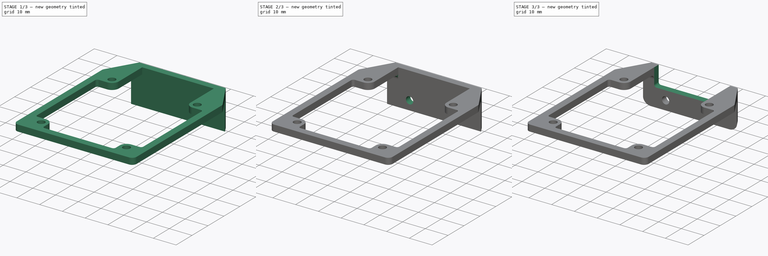
[diagram: build sequence overview — one tinted view per stage of 3, left to right]
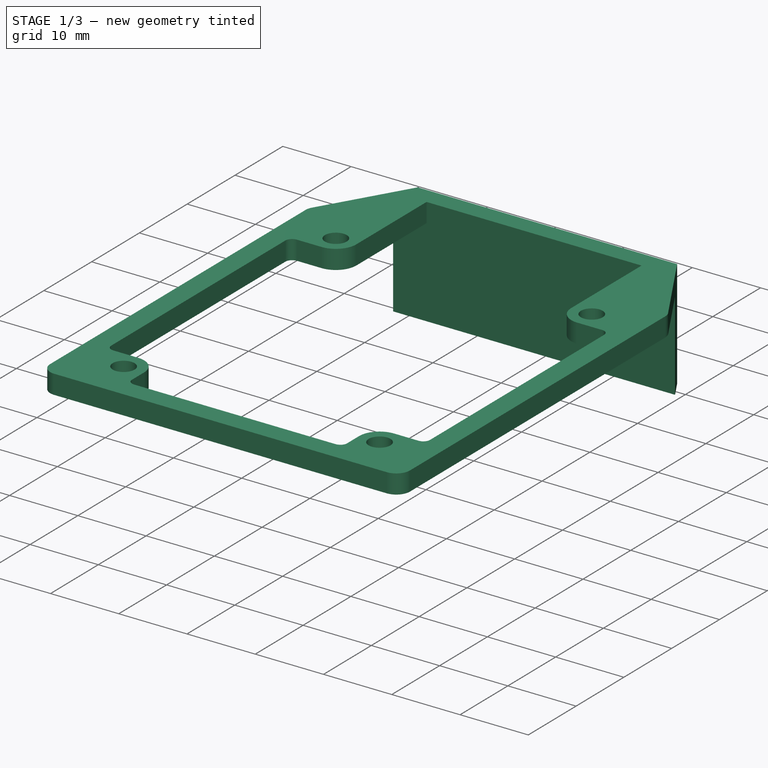
[diagram: stage 1 of 3 — iso view after this stage's code; geometry added in this stage tinted green]
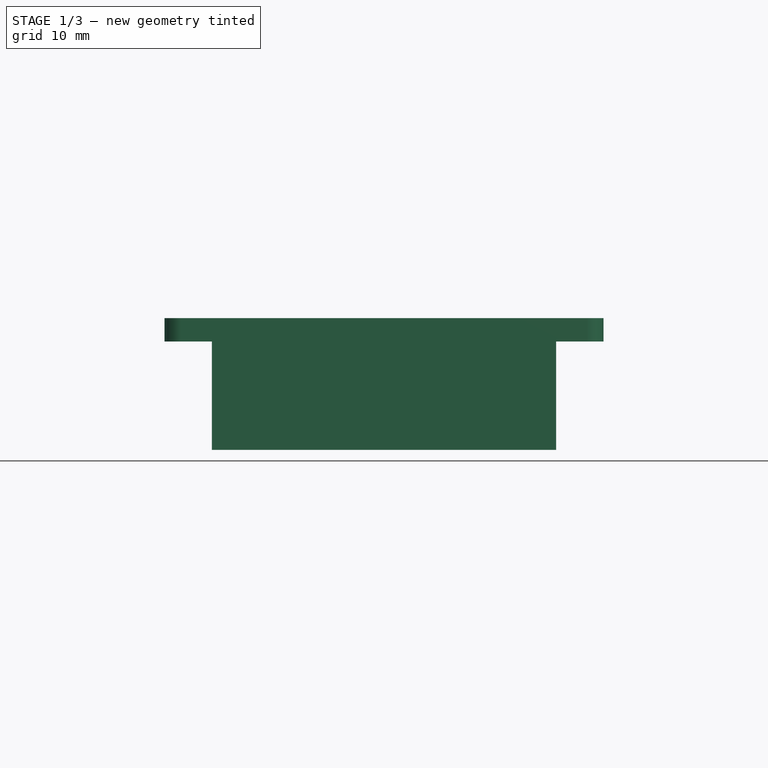
[diagram: stage 1 of 3 — front view after this stage's code; geometry added in this stage tinted green]
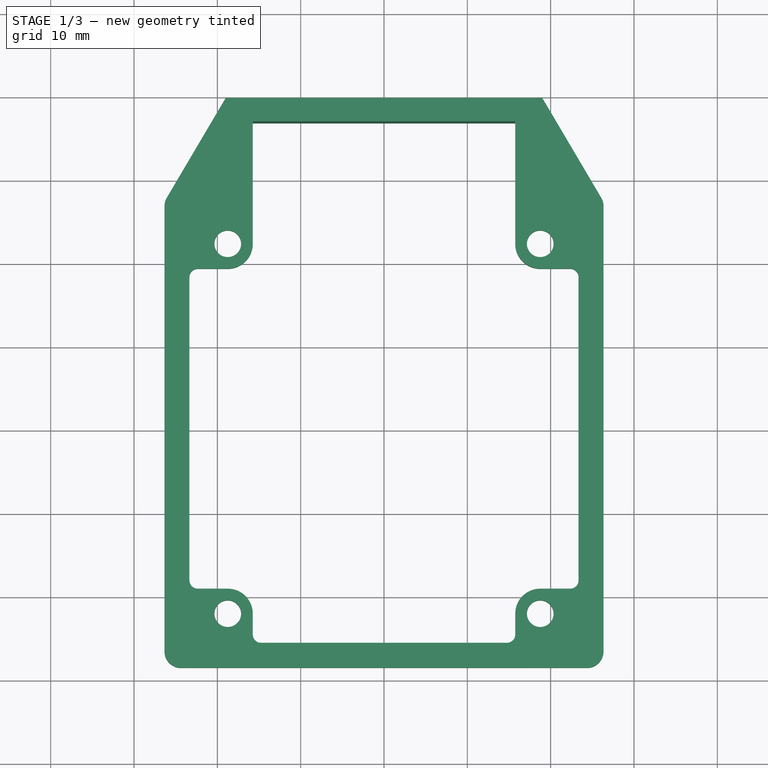
[diagram: stage 1 of 3 — top view after this stage's code; geometry added in this stage tinted green]
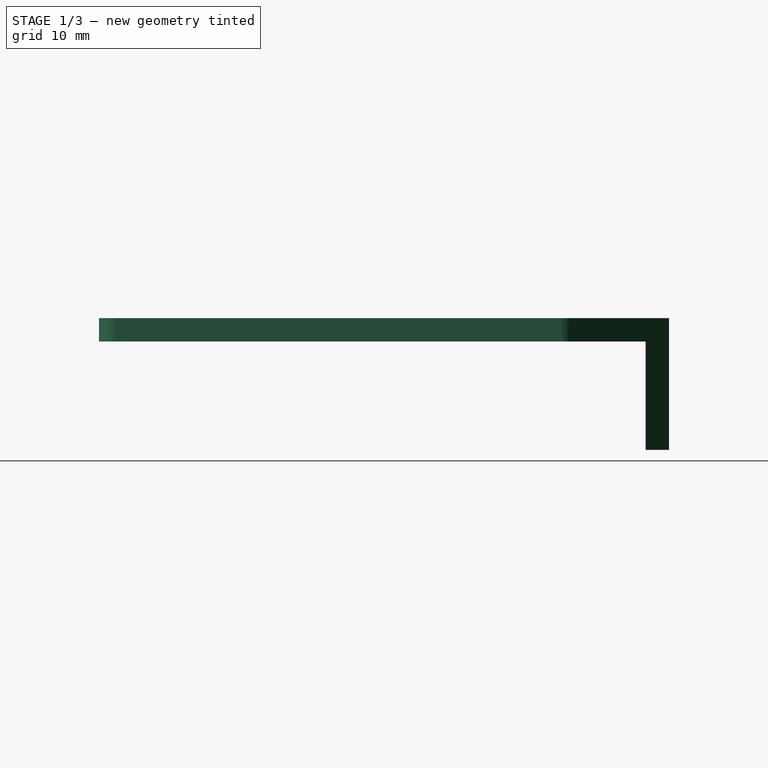
[diagram: stage 1 of 3 — right view after this stage's code; geometry added in this stage tinted green]
FCSTD DOCUMENT  (FreeCAD 0.21R33771 (Git))
Label: Powermodule_holder
License: All rights reserved
LicenseURL: http://en.wikipedia.org/wiki/All_rights_reserved
objects: Sketcher::SketchObject×4, PartDesign::Pad×2, PartDesign::Fillet×2, PartDesign::Hole×1, PartDesign::Pocket×1, PartDesign::Body×1
note: 17 computed .brp shape members not serialized (recipe doc carries the construction recipe); baked Part::Feature solids carry a one-line shape summary decoded from their .brp

FEATURE [Sketcher::SketchObject] Sketch
  FullyConstrained = true
  MapMode = 5
  Support = -> [XY_Plane]
  sketch-geometry (39):
    g0: LineSegment StartX=-15.75 StartY=36.9 StartZ=0 EndX=15.75 EndY=36.9 EndZ=0
    g1: LineSegment StartX=23.35 StartY=18.2 StartZ=0 EndX=23.35 EndY=-18.2 EndZ=0
    g2: LineSegment StartX=14.75 StartY=-25.7 StartZ=0 EndX=-14.75 EndY=-25.7 EndZ=0
    g3: LineSegment StartX=-23.35 StartY=-18.2 StartZ=0 EndX=-23.35 EndY=18.2 EndZ=0
    g4: LineSegment StartX=23.35 StartY=0 StartZ=0 EndX=-23.35 EndY=0 EndZ=0
    g5: LineSegment StartX=0 StartY=36.9 StartZ=0 EndX=0 EndY=-25.7 EndZ=0
    g6: Circle CenterX=-18.75 CenterY=-22.2 CenterZ=0 NormalX=0 NormalY=0 NormalZ=1 AngleXU=0 Radius=1.6
    g7: Circle CenterX=18.75 CenterY=-22.2 CenterZ=0 NormalX=0 NormalY=0 NormalZ=1 AngleXU=0 Radius=1.6
    g8: Circle CenterX=18.75 CenterY=22.2 CenterZ=0 NormalX=0 NormalY=0 NormalZ=1 AngleXU=0 Radius=1.6
    g9: Circle CenterX=-18.75 CenterY=22.2 CenterZ=0 NormalX=0 NormalY=0 NormalZ=1 AngleXU=0 Radius=1.6
    g10: LineSegment StartX=-22.35 StartY=19.2 StartZ=0 EndX=-18.75 EndY=19.2 EndZ=0
    g11: LineSegment StartX=-15.75 StartY=22.2 StartZ=0 EndX=-15.75 EndY=36.9 EndZ=0
    g12: LineSegment StartX=22.35 StartY=19.2 StartZ=0 EndX=18.75 EndY=19.2 EndZ=0
    g13: LineSegment StartX=15.75 StartY=22.2 StartZ=0 EndX=15.75 EndY=36.9 EndZ=0
    g14: LineSegment StartX=-22.35 StartY=-19.2 StartZ=0 EndX=-18.75 EndY=-19.2 EndZ=0
    g15: LineSegment StartX=-15.75 StartY=-22.2 StartZ=0 EndX=-15.75 EndY=-24.7 EndZ=0
    g16: LineSegment StartX=22.35 StartY=-19.2 StartZ=0 EndX=18.75 EndY=-19.2 EndZ=0
    g17: LineSegment StartX=15.75 StartY=-22.2 StartZ=0 EndX=15.75 EndY=-24.7 EndZ=0
    g18: ArcOfCircle CenterX=-18.75 CenterY=22.2 CenterZ=0 NormalX=0 NormalY=0 NormalZ=1 AngleXU=0 Radius=3 StartAngle=4.71239 EndAngle=6.28319
    g19: ArcOfCircle CenterX=18.75 CenterY=22.2 CenterZ=0 NormalX=0 NormalY=0 NormalZ=1 AngleXU=0 Radius=3 StartAngle=3.14159 EndAngle=4.71239
    g20: ArcOfCircle CenterX=-18.75 CenterY=-22.2 CenterZ=0 NormalX=0 NormalY=0 NormalZ=1 AngleXU=0 Radius=3 StartAngle=0 EndAngle=1.5708
    g21: ArcOfCircle CenterX=18.75 CenterY=-22.2 CenterZ=0 NormalX=0 NormalY=0 NormalZ=1 AngleXU=0 Radius=3 StartAngle=1.5708 EndAngle=3.14159
    g22: ArcOfCircle CenterX=-22.35 CenterY=-18.2 CenterZ=0 NormalX=0 NormalY=0 NormalZ=1 AngleXU=0 Radius=1 StartAngle=3.14159 EndAngle=4.71239
    g23: ArcOfCircle CenterX=-14.75 CenterY=-24.7 CenterZ=0 NormalX=0 NormalY=0 NormalZ=1 AngleXU=0 Radius=1 StartAngle=3.14159 EndAngle=4.71239
    g24: ArcOfCircle CenterX=14.75 CenterY=-24.7 CenterZ=0 NormalX=0 NormalY=0 NormalZ=1 AngleXU=0 Radius=1 StartAngle=4.71239 EndAngle=6.28319
    g25: ArcOfCircle CenterX=22.35 CenterY=-18.2 CenterZ=0 NormalX=0 NormalY=0 NormalZ=1 AngleXU=0 Radius=1 StartAngle=4.71239 EndAngle=6.28319
    g26: ArcOfCircle CenterX=22.35 CenterY=18.2 CenterZ=0 NormalX=0 NormalY=0 NormalZ=1 AngleXU=0 Radius=1 StartAngle=7e-16 EndAngle=1.5708
    g27: ArcOfCircle CenterX=-22.35 CenterY=18.2 CenterZ=0 NormalX=0 NormalY=0 NormalZ=1 AngleXU=0 Radius=1 StartAngle=1.5708 EndAngle=3.14159
    g28: LineSegment StartX=26.35 StartY=26.7 StartZ=0 EndX=26.35 EndY=-26.7 EndZ=0
    g29: LineSegment StartX=24.35 StartY=-28.7 StartZ=0 EndX=-24.35 EndY=-28.7 EndZ=0
    g30: LineSegment StartX=-26.35 StartY=-26.7 StartZ=0 EndX=-26.35 EndY=26.7 EndZ=0
    g31: ArcOfCircle CenterX=-24.35 CenterY=26.7 CenterZ=0 NormalX=0 NormalY=0 NormalZ=1 AngleXU=0 Radius=2 StartAngle=2.60843 EndAngle=3.14159
    g32: ArcOfCircle CenterX=-24.35 CenterY=-26.7 CenterZ=0 NormalX=0 NormalY=0 NormalZ=1 AngleXU=0 Radius=2 StartAngle=3.14159 EndAngle=4.71239
    g33: ArcOfCircle CenterX=24.35 CenterY=-26.7 CenterZ=0 NormalX=0 NormalY=0 NormalZ=1 AngleXU=0 Radius=2 StartAngle=4.71239 EndAngle=6.28319
    g34: ArcOfCircle CenterX=24.35 CenterY=26.7 CenterZ=0 NormalX=0 NormalY=0 NormalZ=1 AngleXU=0 Radius=2 StartAngle=0 EndAngle=0.533167
    g35: LineSegment StartX=-26.0724 StartY=27.7165 StartZ=0 EndX=-19 EndY=39.7 EndZ=0
    g36: LineSegment StartX=26.0724 StartY=27.7165 StartZ=0 EndX=19 EndY=39.7 EndZ=0
    g37: LineSegment StartX=-24.35 StartY=26.7 StartZ=0 EndX=24.35 EndY=26.7 EndZ=0
    g38: LineSegment StartX=-19 StartY=39.7 StartZ=0 EndX=19 EndY=39.7 EndZ=0
  constraints (96):
    c: Horizontal(g0)
    c: Horizontal(g2)
    c: Vertical(g1)
    c: Vertical(g3)
    c: PointOnObject(g4,g1)
    c: Horizontal(g4)
    c: PointOnObject(g5,g2)
    c: Vertical(g5)
    c: PointOnObject(g-1,g4)
    c: PointOnObject(g-1,g5)
    c: Diameter(g9) = 3.2
    c: Equal(g9,g8)
    c: Equal(g6,g9)
    c: Equal(g7,g9)
    c: DistanceX(g9,g8) = 37.5
    c: Symmetric(g9,g8,g5)
    c: DistanceY(g6,g9) = 44.4
    c: Symmetric(g9,g6,g4)
    c: Symmetric(g7,g6,g5)
    c: PointOnObject(g5,g0)
    c: PointOnObject(g4,g3)
    c: DistanceX(g4,g-1) = 23.35
    c: DistanceX(g4,g4) = 46.7
    c: Horizontal(g10)
    c: Vertical(g11)
    c: Horizontal(g12)
    c: Vertical(g13)
    c: Horizontal(g14)
    c: Vertical(g15)
    c: Horizontal(g16)
    c: Vertical(g17)
    c: Tangent(g10,g18) = -1.5708
    c: Tangent(g11,g18) = -1.5708
    c: Tangent(g12,g19) = 1.5708
    c: Tangent(g13,g19) = 1.5708
    c: Tangent(g14,g20) = 1.5708
    c: Tangent(g15,g20) = 1.5708
    c: Tangent(g16,g21) = -1.5708
    c: Tangent(g17,g21) = -1.5708
    c: Tangent(g3,g22) = 1.5708
    c: Tangent(g14,g22) = -1.5708
    c: Tangent(g2,g23) = 1.5708
    c: Tangent(g15,g23) = -1.5708
    c: Tangent(g2,g24) = 1.5708
    c: Tangent(g17,g24) = 1.5708
    c: Tangent(g16,g25) = 1.5708
    c: Tangent(g1,g25) = 1.5708
    c: Tangent(g12,g26) = -1.5708
    c: Tangent(g1,g26) = 1.5708
    c: Tangent(g3,g27) = 1.5708
    c: Tangent(g10,g27) = 1.5708
    c: Equal(g18,g20)
    c: Equal(g20,g21)
    c: Equal(g21,g19)
    c: Coincident(g9,g18)
    c: Coincident(g19,g8)
    c: Coincident(g6,g20)
    c: Coincident(g7,g21)
    c: Equal(g24,g23)
    c: Equal(g23,g22)
    c: Equal(g22,g27)
    c: Equal(g26,g25)
    c: Radius(g24) = 1
    c: Radius(g20) = 3
    c: Horizontal(g29)
    c: Vertical(g28)
    c: Vertical(g30)
    c: Tangent(g30,g31) = 1.5708
    c: Tangent(g29,g32) = 1.5708
    c: Tangent(g30,g32) = 1.5708
    c: Tangent(g28,g33) = 1.5708
    c: Tangent(g29,g33) = 1.5708
    c: Tangent(g28,g34) = 1.5708
    c: Equal(g32,g31)
    c: Equal(g31,g34)
    c: Equal(g34,g33)
    c: Radius(g32) = 2
    c: DistanceX(g30,g4) = 3
    c: DistanceX(g4,g28) = 3
    c: DistanceY(g29,g2) = 3
    c: Tangent(g35,g31) = 1.5708
    c: Tangent(g36,g34) = -1.5708
    c: Symmetric(g35,g36,g5)
    c: Horizontal(g37)
    c: Coincident(g37,g31)
    c: Coincident(g37,g34)
    c: Coincident(g38,g35)
    c: Coincident(g38,g36)
    c: DistanceX(g38,g38) = 38
    c: DistanceY(g5,g-1) = 25.7
    c: DistanceY(g-1,g34) = 26.7
    c: DistanceY(g-1,g35) = 39.7
    c: DistanceY(g5,g35) = 2.8
    c: Coincident(g0,g11)
    c: Coincident(g0,g13)
    c: Equal(g25,g24)
FEATURE [PartDesign::Pad] Pad
  Direction = (0,0,1)
  Length = 2.8
  Length2 = 10
  Profile = -> Sketch
  ReferenceAxis = -> Sketch [N_Axis]
  Type = 0
FEATURE [Sketcher::SketchObject] Sketch001
  ExternalGeometry = -> [Pad]
  FullyConstrained = true
  MapMode = 5
  Placement = pos=(0,0,0) rot=(1,0,0;3.14159rad)
  Support = -> [Pad]
  sketch-geometry (4):
    g0: LineSegment StartX=-20.6525 StartY=-36.9 StartZ=0 EndX=20.6525 EndY=-36.9 EndZ=0
    g1: LineSegment StartX=19 StartY=-39.7 StartZ=0 EndX=20.6525 EndY=-36.9 EndZ=0
    g2: LineSegment StartX=19 StartY=-39.7 StartZ=0 EndX=-19 EndY=-39.7 EndZ=0
    g3: LineSegment StartX=-19 StartY=-39.7 StartZ=0 EndX=-20.6525 EndY=-36.9 EndZ=0
  constraints (10):
    c: PointOnObject(g0,g-4)
    c: PointOnObject(g0,g-5)
    c: Horizontal(g0)
    c: Coincident(g1,g-5)
    c: Coincident(g1,g0)
    c: Coincident(g2,g1)
    c: Coincident(g2,g-4)
    c: Coincident(g3,g2)
    c: Coincident(g3,g0)
    c: DistanceY(g2,g0) = 2.8
FEATURE [PartDesign::Pad] Pad001
  BaseFeature = -> Pad
  Direction = (0,0,-1)
  Length = 13
  Length2 = 10
  Profile = -> Sketch001
  ReferenceAxis = -> Sketch001 [N_Axis]
  Type = 0
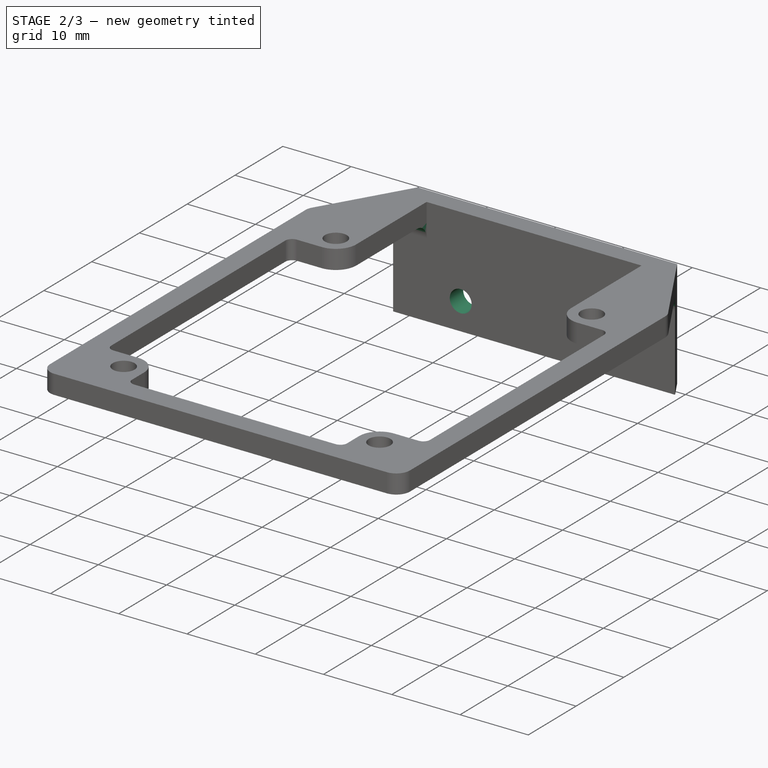
[diagram: stage 2 of 3 — iso view after this stage's code; geometry added in this stage tinted green]
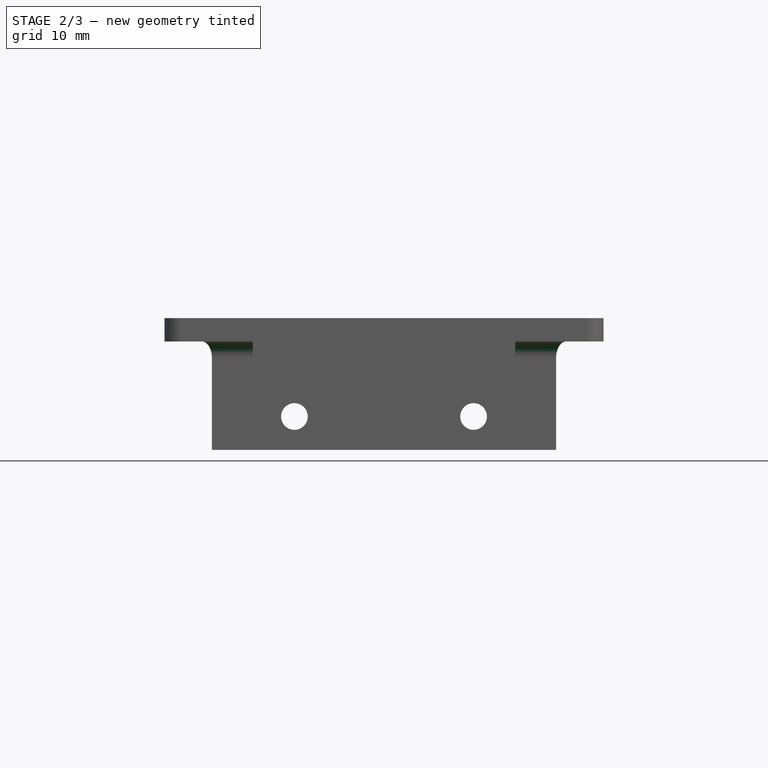
[diagram: stage 2 of 3 — front view after this stage's code; geometry added in this stage tinted green]
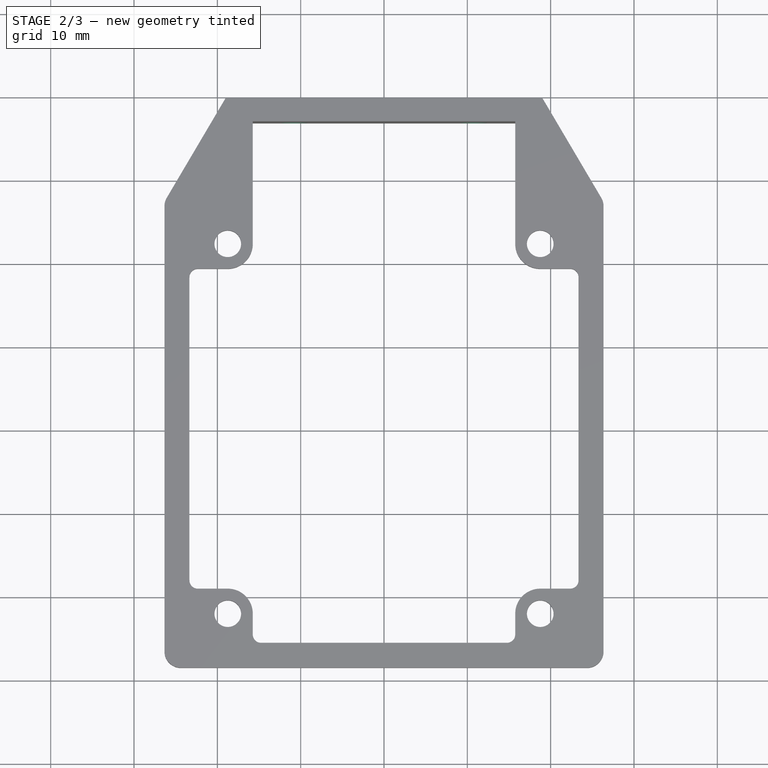
[diagram: stage 2 of 3 — top view after this stage's code; geometry added in this stage tinted green]
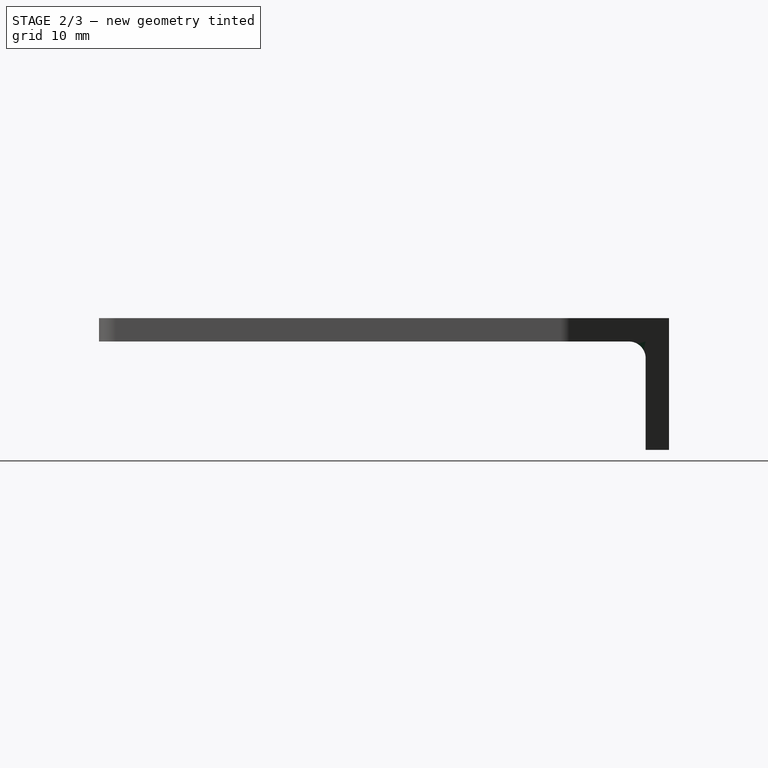
[diagram: stage 2 of 3 — right view after this stage's code; geometry added in this stage tinted green]
FEATURE [PartDesign::Fillet] Fillet
  Base = -> Pad001 [Edge16,Edge38]
  BaseFeature = -> Pad001
  Radius = 2
  SupportTransform = false
  UseAllEdges = false
FEATURE [Sketcher::SketchObject] Sketch002
  FullyConstrained = true
  MapMode = 5
  Placement = pos=(0,39.7,0) rot=(0,0.707107,0.707107;3.14159rad)
  Support = -> [Fillet]
  sketch-geometry (5):
    g0: Circle CenterX=-10.75 CenterY=-9 CenterZ=0 NormalX=0 NormalY=0 NormalZ=1 AngleXU=0 Radius=1.6
    g1: Circle CenterX=10.75 CenterY=-9 CenterZ=0 NormalX=0 NormalY=0 NormalZ=1 AngleXU=0 Radius=1.6
    g2: LineSegment StartX=0 StartY=0 StartZ=0 EndX=0 EndY=-9 EndZ=0
    g3: LineSegment StartX=-10.75 StartY=-9 StartZ=0 EndX=0 EndY=-9 EndZ=0
    g4: LineSegment StartX=10.75 StartY=-9 StartZ=0 EndX=0 EndY=-9 EndZ=0
  constraints (13):
    c: Equal(g0,g1)
    c: Diameter(g0) = 3.2
    c: Coincident(g2,g-1)
    c: Vertical(g2)
    c: Coincident(g3,g0)
    c: Coincident(g3,g2)
    c: Horizontal(g3)
    c: Coincident(g4,g1)
    c: Coincident(g4,g2)
    c: Horizontal(g4)
    c: Equal(g3,g4)
    c: DistanceX(g0,g1) = 21.5
    c: Distance(g2) = 9
FEATURE [PartDesign::Hole] Hole
  BaseFeature = -> Fillet
  CustomThreadClearance = 0
  Depth = 177.317
  DepthType = 1
  Diameter = 3.2
  DrillForDepth = false
  DrillPoint = 1
  DrillPointAngle = 118
  HoleCutCountersinkAngle = 90
  HoleCutCustomValues = false
  HoleCutDepth = 0
  HoleCutDiameter = 6.1
  HoleCutType = 0
  ModelThread = false
  Profile = -> Sketch002
  Tapered = false
  TaperedAngle = 90
  ThreadClass = 0
  ThreadDepth = 177.317
  ThreadDepthType = 0
  ThreadDirection = 0
  ThreadFit = 0
  ThreadSize = 0
  ThreadType = 0
  Threaded = false
  UseCustomThreadClearance = false
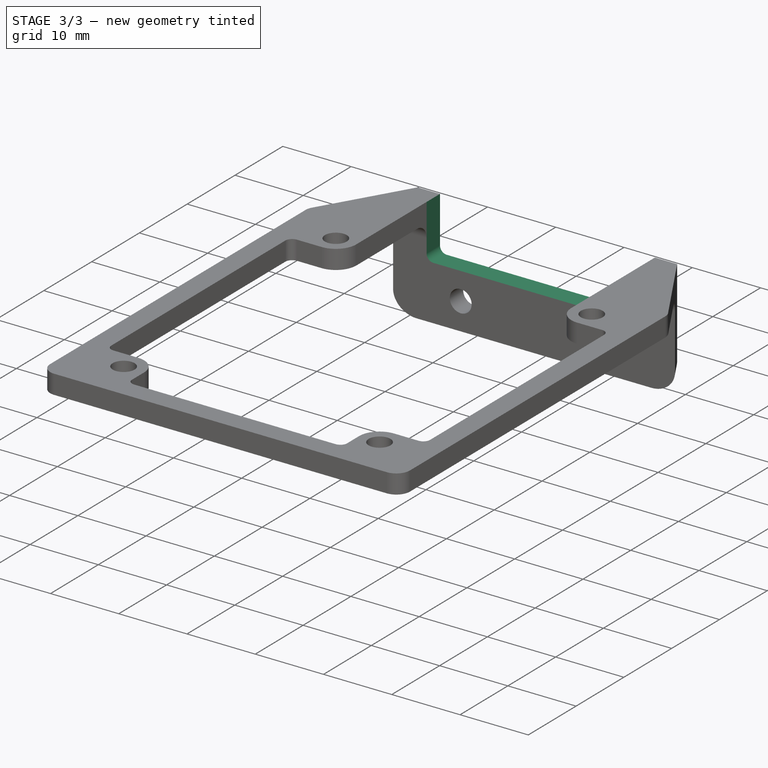
[diagram: stage 3 of 3 — iso view after this stage's code; geometry added in this stage tinted green]
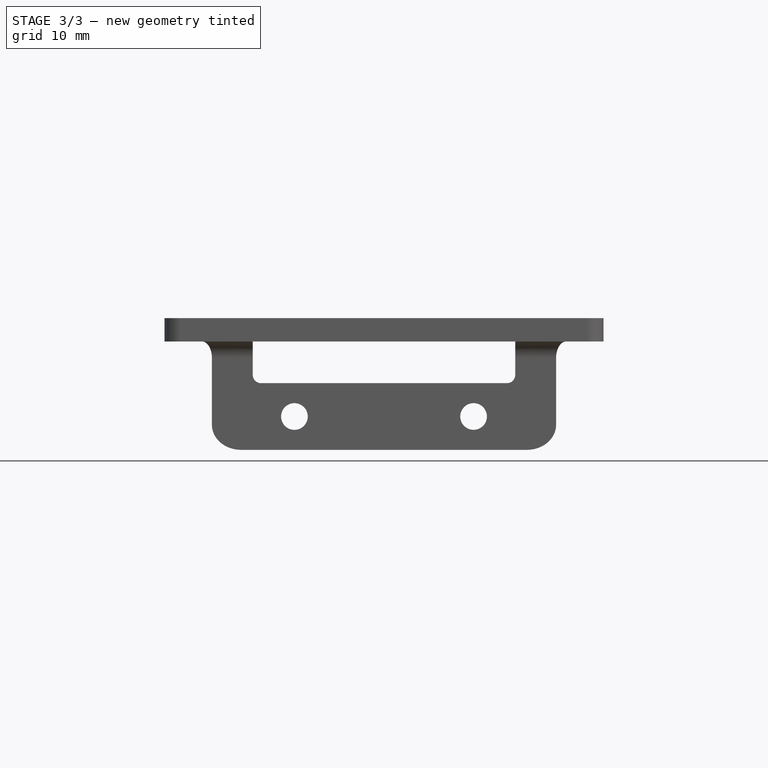
[diagram: stage 3 of 3 — front view after this stage's code; geometry added in this stage tinted green]
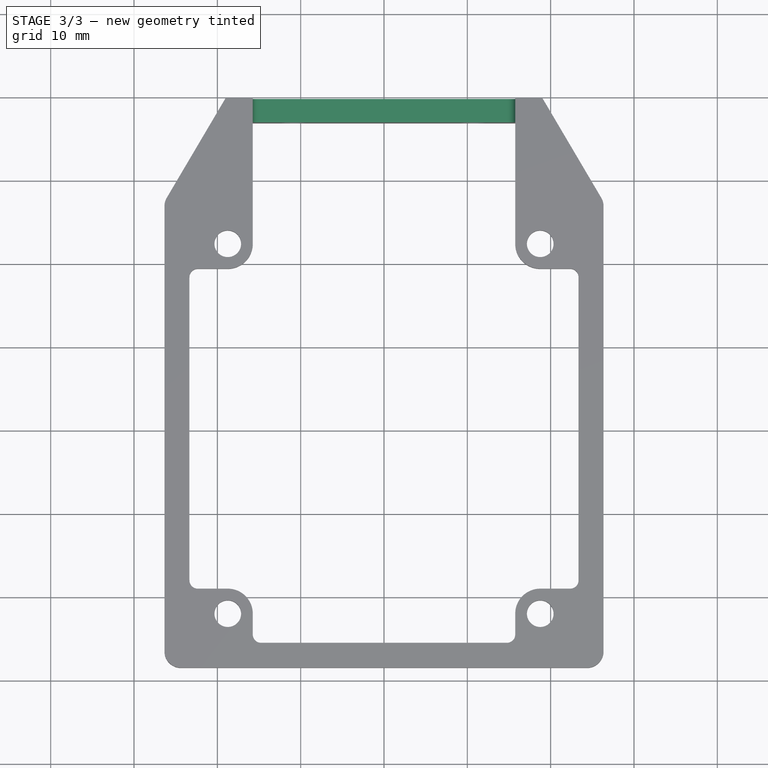
[diagram: stage 3 of 3 — top view after this stage's code; geometry added in this stage tinted green]
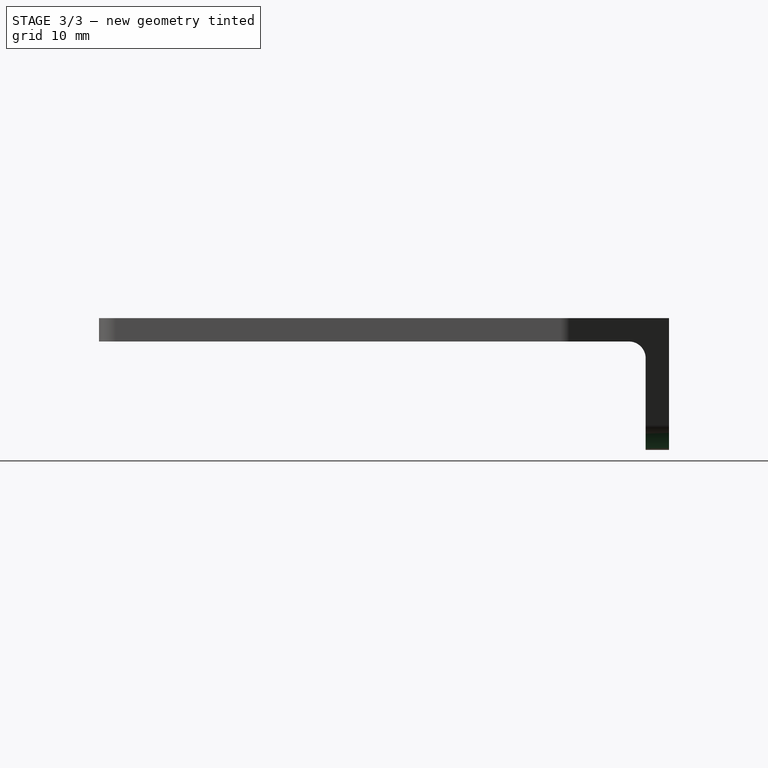
[diagram: stage 3 of 3 — right view after this stage's code; geometry added in this stage tinted green]
FEATURE [PartDesign::Fillet] Fillet001
  Base = -> Hole [Edge124,Edge127]
  BaseFeature = -> Hole
  Radius = 3
  SupportTransform = false
  UseAllEdges = false
FEATURE [Sketcher::SketchObject] Sketch003
  ExternalGeometry = -> [Fillet001]
  FullyConstrained = true
  MapMode = 5
  Placement = pos=(0,39.7,0) rot=(0,0.707107,0.707107;3.14159rad)
  Support = -> [Fillet001]
  sketch-geometry (6):
    g0: LineSegment StartX=-15.75 StartY=2.8 StartZ=0 EndX=15.75 EndY=2.8 EndZ=0
    g1: LineSegment StartX=15.75 StartY=2.8 StartZ=0 EndX=15.75 EndY=-4 EndZ=0
    g2: LineSegment StartX=14.75 StartY=-5 StartZ=0 EndX=-14.75 EndY=-5 EndZ=0
    g3: LineSegment StartX=-15.75 StartY=-4 StartZ=0 EndX=-15.75 EndY=2.8 EndZ=0
    g4: ArcOfCircle CenterX=-14.75 CenterY=-4 CenterZ=0 NormalX=0 NormalY=0 NormalZ=1 AngleXU=0 Radius=1 StartAngle=3.14159 EndAngle=4.71239
    g5: ArcOfCircle CenterX=14.75 CenterY=-4 CenterZ=0 NormalX=0 NormalY=0 NormalZ=1 AngleXU=0 Radius=1 StartAngle=4.71239 EndAngle=6.28319
  constraints (16):
    c: Coincident(g0,g1)
    c: Coincident(g3,g0)
    c: Horizontal(g0)
    c: Horizontal(g2)
    c: Vertical(g1)
    c: Vertical(g3)
    c: Tangent(g2,g4) = 1.5708
    c: Tangent(g3,g4) = 1.5708
    c: Tangent(g1,g5) = 1.5708
    c: Tangent(g2,g5) = 1.5708
    c: Equal(g4,g5)
    c: Radius(g5) = 1
    c: PointOnObject(g0,g-4)
    c: PointOnObject(g0,g-5)
    c: PointOnObject(g0,g-6)
    c: DistanceY(g-3,g2) = 4
FEATURE [PartDesign::Pocket] Pocket
  BaseFeature = -> Fillet001
  Direction = (0,-1,2e-16)
  Length = 0
  Length2 = 5
  Profile = -> Sketch003
  ReferenceAxis = -> Sketch003 [N_Axis]
  Type = 3
  UpToFace = -> Fillet001 [Face10]
FEATURE [PartDesign::Body] Body
  Group = -> [Sketch,Pad,Sketch001,Pad001,Fillet,Sketch002,Hole,Fillet001,Sketch003,Pocket]
  Origin = -> Origin
  Tip = -> Pocket
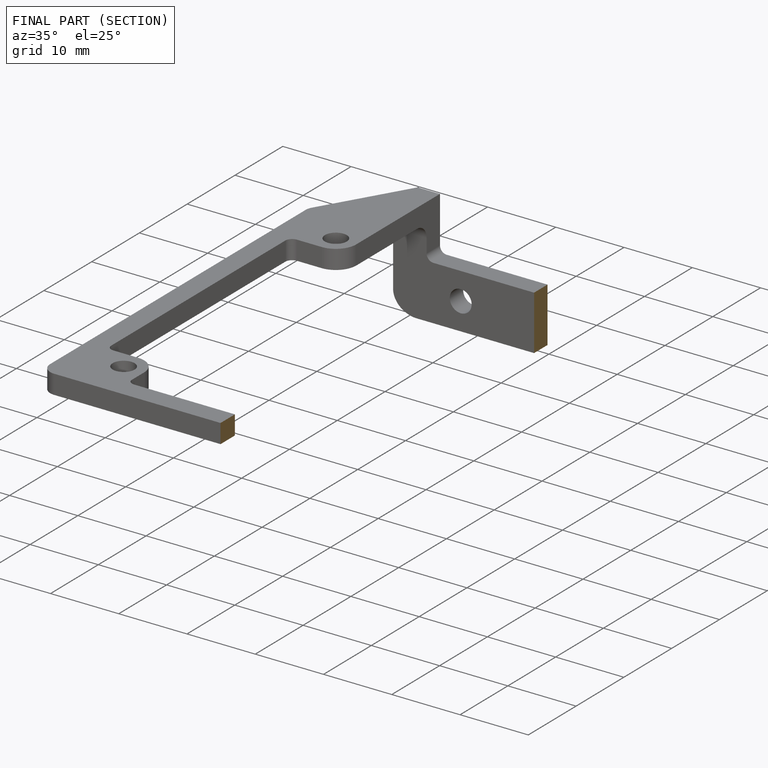
[diagram: finished part — half-section view (interior)]
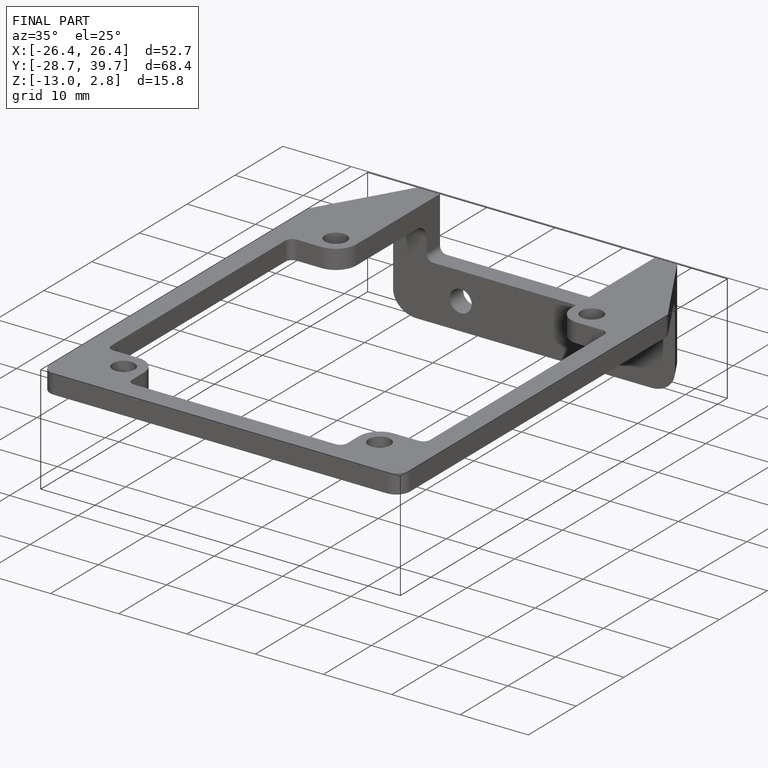
[diagram: finished part — iso view with bounding-box wireframe]
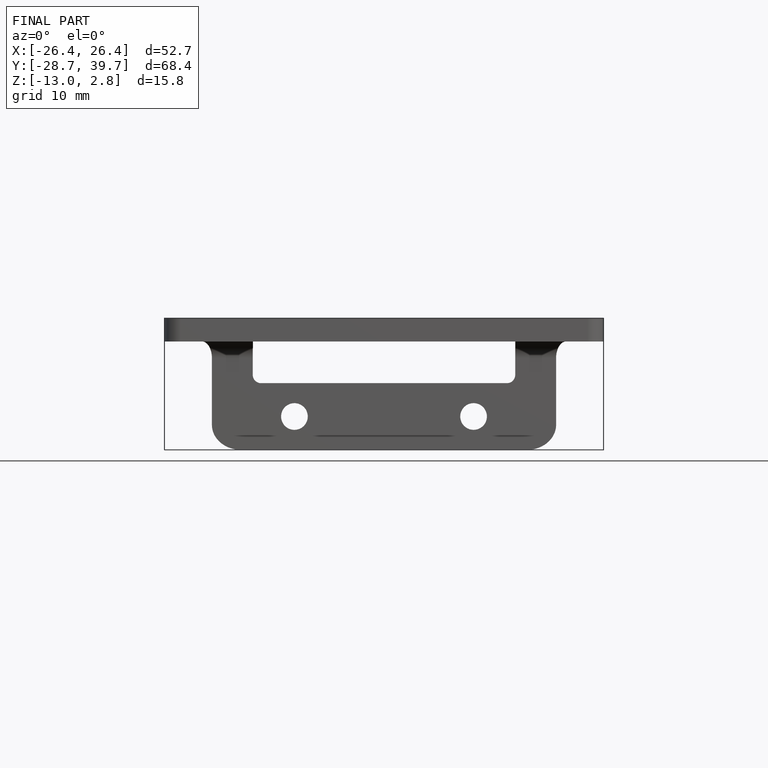
[diagram: finished part — front view with bounding-box wireframe]
